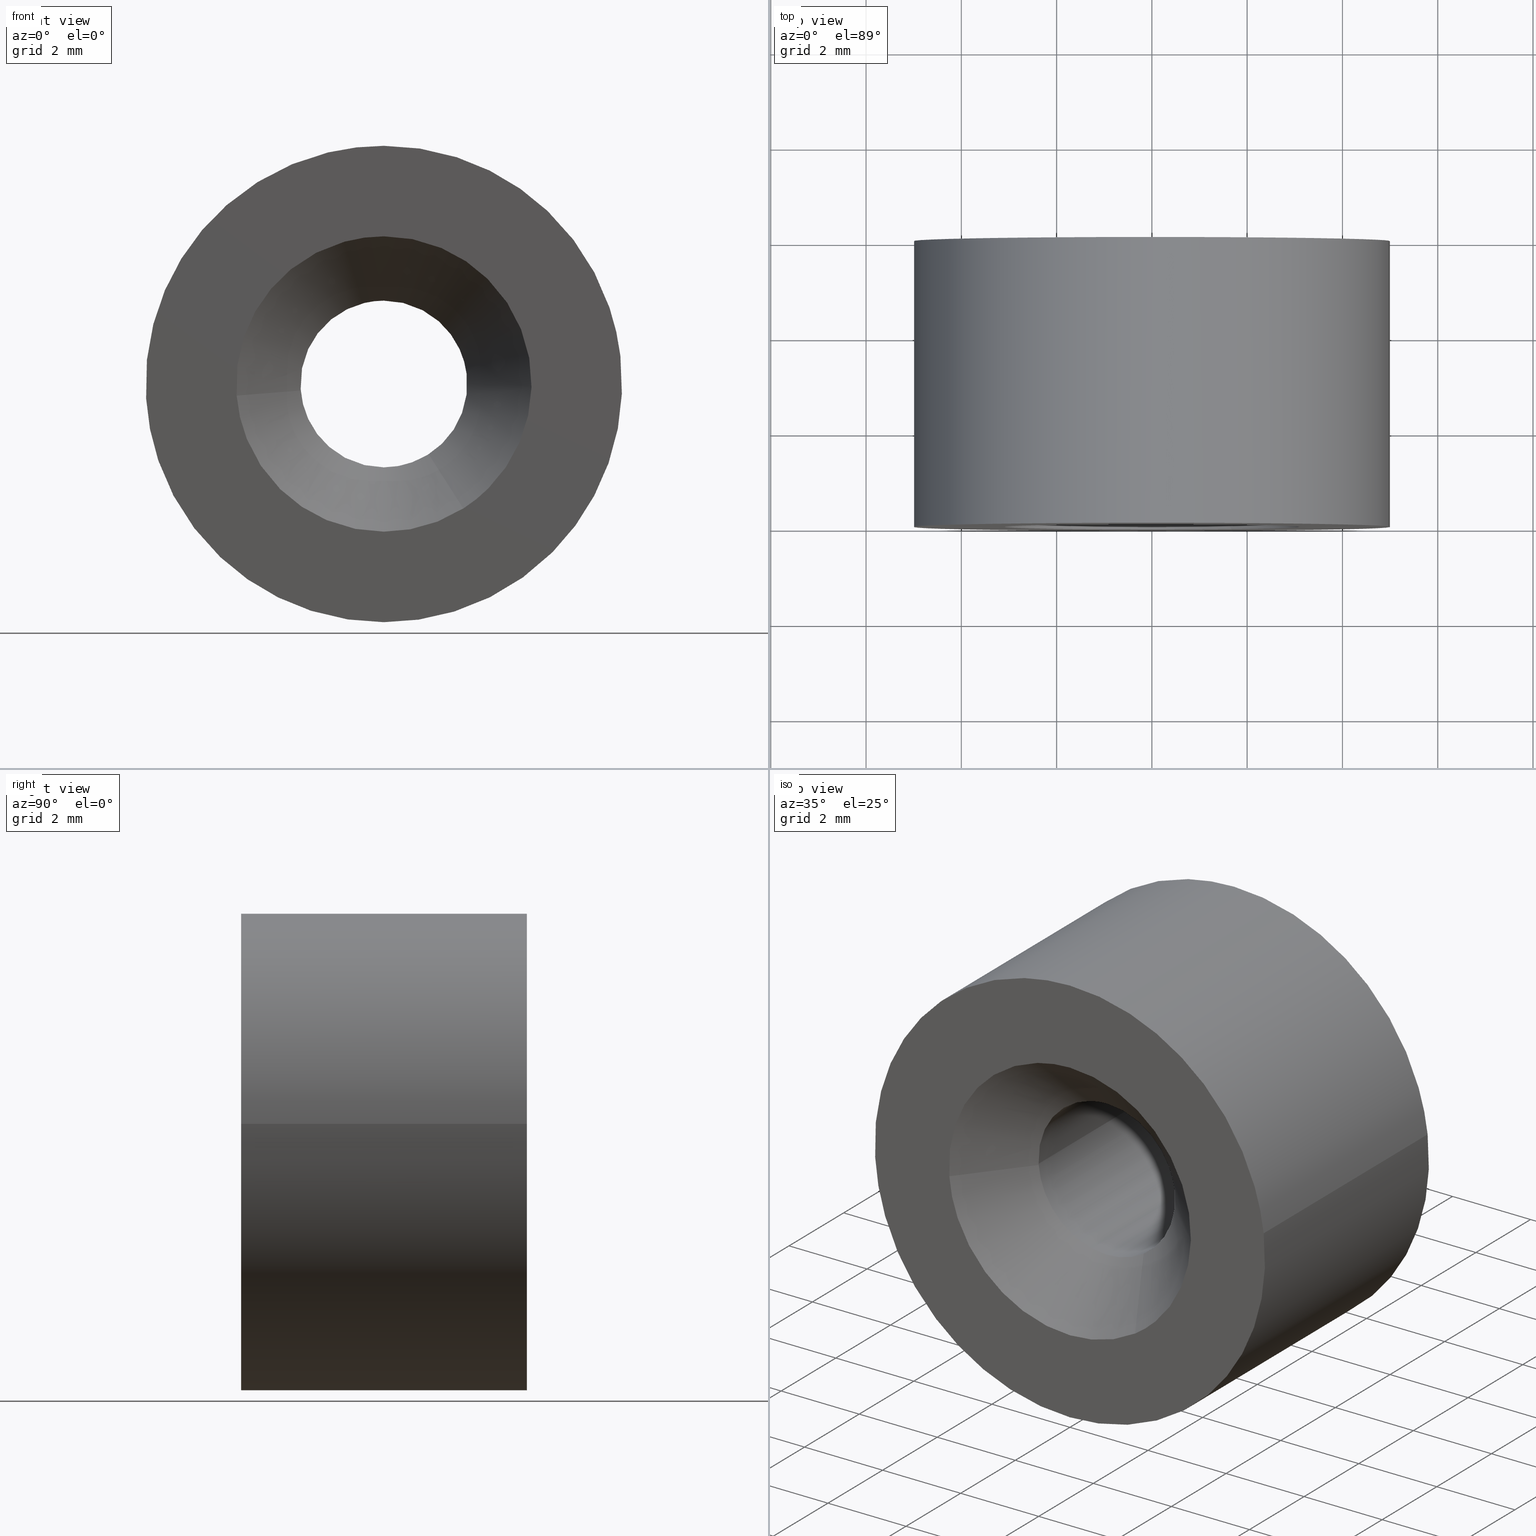
[diagram: canonical four-view strip — front | top / right | iso, engineering-drawing reading convention]
A machine part, canonical four-view strip (front | top / right | iso — engineering-drawing reading convention). The complete STEP part file that produces these views, byte-faithful:
ISO-10303-21;
HEADER;
/****************************************************************
 * Generated by software with PDE/Lib inside                    *
 * PDElib Version 4.4.1-0003, patched  Thursday August 19 11:58 *
 * International Technegroup Inc. (www.iti-oh.com)              *
 ****************************************************************/
FILE_DESCRIPTION((''),'2;1');
FILE_NAME('','2005-07-15T16:13:46',(''),(''),'','CADfix','');
FILE_SCHEMA(('AUTOMOTIVE_DESIGN'));
ENDSEC;
DATA;
#5=APPLICATION_CONTEXT('automotive design');
#6=APPLICATION_PROTOCOL_DEFINITION('Draft International Standard','automotive_design',1998,#5);
#7=PRODUCT_CONTEXT('None',#5,'mechanical');
#8=PRODUCT('stopper','','None',(#7));
#9=PRODUCT_RELATED_PRODUCT_CATEGORY('part','description',(#8));
#10=PRODUCT_DEFINITION_FORMATION('None','None',#8);
#11=PRODUCT_DEFINITION_CONTEXT('part definition',#5,'design');
#12=PRODUCT_DEFINITION('None','None',#10,#11);
#18=(NAMED_UNIT(*)PLANE_ANGLE_UNIT()SI_UNIT($,.RADIAN.));
#19=DIMENSIONAL_EXPONENTS(0.0,0.0,0.0,0.0,0.0,0.0,0.0);
#20=PLANE_ANGLE_MEASURE_WITH_UNIT(PLANE_ANGLE_MEASURE(0.017453292500000),#18);
#24=(CONVERSION_BASED_UNIT('DEGREE',#20)NAMED_UNIT(#19)PLANE_ANGLE_UNIT());
#28=(NAMED_UNIT(*)SI_UNIT($,.STERADIAN.)SOLID_ANGLE_UNIT());
#32=(LENGTH_UNIT()NAMED_UNIT(*)SI_UNIT(.MILLI.,.METRE.));
#34=UNCERTAINTY_MEASURE_WITH_UNIT(LENGTH_MEASURE(0.001000000000000),#32,'DISTANCE_ACCURACY_VALUE','');
#36=(GEOMETRIC_REPRESENTATION_CONTEXT(3)GLOBAL_UNCERTAINTY_ASSIGNED_CONTEXT((#34))GLOBAL_UNIT_ASSIGNED_CONTEXT((#24,#28,#32))REPRESENTATION_CONTEXT('None','None'));
#37=AXIS2_PLACEMENT_3D('',#38,#39,#40);
#38=CARTESIAN_POINT('',(0.0,0.0,0.0));
#39=DIRECTION('',(0.0,0.0,1.0));
#40=DIRECTION('',(1.0,0.0,0.0));
#41=ADVANCED_BREP_SHAPE_REPRESENTATION('',(#37,#615),#36);
#42=PRODUCT_DEFINITION_SHAPE('','',#12);
#43=SHAPE_DEFINITION_REPRESENTATION(#42,#41);
#44=CARTESIAN_POINT('',(0.923086424252046,-4.616249999999998,-1.446867483863524));
#45=CARTESIAN_POINT('',(1.791808627370082,-4.616249999999998,-0.892631742796702));
#46=CARTESIAN_POINT('',(1.710959374019479,-4.616249999999998,0.134655423042915));
#47=CARTESIAN_POINT('',(1.576303950976564,-4.616249999999998,1.845614797062394));
#48=CARTESIAN_POINT('',(-0.134655423042915,-4.616249999999998,1.710959374019479));
#49=CARTESIAN_POINT('',(-1.845614797062394,-4.616249999999998,1.576303950976564));
#50=CARTESIAN_POINT('',(-1.710959374019479,-4.616249999999998,-0.134655423042915));
#51=CARTESIAN_POINT('',(1.685943735569011,-6.034593750000000,-2.642588068170039));
#52=CARTESIAN_POINT('',(3.272595556912071,-6.034593750000000,-1.630320688723759));
#53=CARTESIAN_POINT('',(3.124930843586526,-6.034593750000001,0.245937391099156));
#54=CARTESIAN_POINT('',(2.878993452487368,-6.034593750000001,3.370868234685682));
#55=CARTESIAN_POINT('',(-0.245937391099156,-6.034593750000001,3.124930843586526));
#56=CARTESIAN_POINT('',(-3.370868234685682,-6.034593750000001,2.878993452487368));
#57=CARTESIAN_POINT('',(-3.124930843586526,-6.034593750000001,-0.245937391099156));
#65=(BOUNDED_SURFACE()B_SPLINE_SURFACE(2,1,((#44,#51),(#45,#52),(#46,#53),(#47,#54),(#48,#55),(#49,#56),(#50,#57)),.UNSPECIFIED.,.F.,.F.,.U.)B_SPLINE_SURFACE_WITH_KNOTS((3,2,2,3),(2,2),(0.0,3.531624183081431,8.725189158201184,13.918754133320940),(0.0,2.005840967357117),.UNSPECIFIED.)GEOMETRIC_REPRESENTATION_ITEM()RATIONAL_B_SPLINE_SURFACE(((0.872532871172386,0.872532871172386),(0.800832611206852,0.800832611206852),(1.0,1.0),(0.707106781186548,0.707106781186548),(1.0,1.0),(0.707106781186548,0.707106781186548),(1.0,1.0)))REPRESENTATION_ITEM('')SURFACE());
#66=CARTESIAN_POINT('',(1.737767022411301,-4.650000000000009,0.206556955368015));
#67=VERTEX_POINT('',#66);
#68=CARTESIAN_POINT('',(0.941238888533195,-4.650000000000139,-1.475320085511372));
#69=VERTEX_POINT('',#68);
#70=CARTESIAN_POINT('',(1.737767022411301,-4.650000000000008,0.206556955368015));
#71=CARTESIAN_POINT('',(1.750000000000000,-4.650000000000000,0.103640716129135));
#72=CARTESIAN_POINT('',(1.750000000000000,-4.650000000000000,0.0));
#73=CARTESIAN_POINT('',(1.750000000000001,-4.650000000000000,-0.959338898022254));
#74=CARTESIAN_POINT('',(0.941238888533195,-4.650000000000139,-1.475320085511373));
#82=(BOUNDED_CURVE()B_SPLINE_CURVE(2,(#70,#71,#72,#73,#74),.UNSPECIFIED.,.F.,.U.)B_SPLINE_CURVE_WITH_KNOTS((3,2,3),(0.229562760926032,0.250000000000000,0.407950112627101),.UNSPECIFIED.)CURVE()GEOMETRIC_REPRESENTATION_ITEM()RATIONAL_B_SPLINE_CURVE((0.956027317524783,0.976056285055862,1.0,0.814949932402804,0.863729296954646))REPRESENTATION_ITEM(''));
#83=EDGE_CURVE('',#67,#69,#82,.T.);
#84=ORIENTED_EDGE('',*,*,#83,.T.);
#85=CARTESIAN_POINT('',(1.667337459685583,-6.000000000000142,-2.613424151478305));
#86=VERTEX_POINT('',#85);
#87=CARTESIAN_POINT('',(0.941238888533195,-4.650000000000139,-1.475320085511372));
#88=CARTESIAN_POINT('',(1.667337459685583,-6.000000000000142,-2.613424151478305));
#89=QUASI_UNIFORM_CURVE('',1,(#87,#88),.UNSPECIFIED.,.F.,.U.);
#90=EDGE_CURVE('',#69,#86,#89,.T.);
#91=ORIENTED_EDGE('',*,*,#90,.T.);
#92=CARTESIAN_POINT('',(0.0,-6.0,3.100000000000000));
#93=VERTEX_POINT('',#92);
#94=CARTESIAN_POINT('',(0.0,-6.0,3.100000000000000));
#95=CARTESIAN_POINT('',(3.100000000000000,-6.0,3.100000000000000));
#96=CARTESIAN_POINT('',(3.100000000000000,-6.0,0.0));
#97=CARTESIAN_POINT('',(3.100000000000000,-6.0,-1.699400333642098));
#98=CARTESIAN_POINT('',(1.667337459685584,-6.000000000000142,-2.613424151478305));
#106=(BOUNDED_CURVE()B_SPLINE_CURVE(2,(#94,#95,#96,#97,#98),.UNSPECIFIED.,.F.,.U.)B_SPLINE_CURVE_WITH_KNOTS((3,2,3),(0.0,0.250000000000000,0.407950112627304),.UNSPECIFIED.)CURVE()GEOMETRIC_REPRESENTATION_ITEM()RATIONAL_B_SPLINE_CURVE((1.0,0.707106781186547,1.0,0.814949932402566,0.863729296954772))REPRESENTATION_ITEM(''));
#107=EDGE_CURVE('',#93,#86,#106,.T.);
#108=ORIENTED_EDGE('',*,*,#107,.F.);
#109=CARTESIAN_POINT('',(-3.090443734573221,-6.000000000001325,-0.243223196766532));
#110=VERTEX_POINT('',#109);
#111=CARTESIAN_POINT('',(-3.090443734573222,-6.000000000001325,-0.243223196766532));
#112=CARTESIAN_POINT('',(-3.100000000000000,-6.0,-0.121799331733931));
#113=CARTESIAN_POINT('',(-3.100000000000000,-6.0,0.0));
#114=CARTESIAN_POINT('',(-3.100000000000000,-6.0,3.100000000000000));
#115=CARTESIAN_POINT('',(0.0,-6.0,3.100000000000000));
#123=(BOUNDED_CURVE()B_SPLINE_CURVE(2,(#111,#112,#113,#114,#115),.UNSPECIFIED.,.F.,.U.)B_SPLINE_CURVE_WITH_KNOTS((3,2,3),(0.736331300631646,0.750000000000000,1.0),.UNSPECIFIED.)CURVE()GEOMETRIC_REPRESENTATION_ITEM()RATIONAL_B_SPLINE_CURVE((0.969723356169475,0.983986122580037,1.0,0.707106781186547,1.0))REPRESENTATION_ITEM(''));
#124=EDGE_CURVE('',#110,#93,#123,.T.);
#125=ORIENTED_EDGE('',*,*,#124,.F.);
#126=CARTESIAN_POINT('',(-1.744605334033341,-4.650000000000918,-0.137303417530764));
#127=VERTEX_POINT('',#126);
#128=CARTESIAN_POINT('',(-1.744605334033341,-4.650000000000918,-0.137303417530764));
#129=CARTESIAN_POINT('',(-3.090443734573221,-6.000000000001325,-0.243223196766532));
#130=QUASI_UNIFORM_CURVE('',1,(#128,#129),.UNSPECIFIED.,.F.,.U.);
#131=EDGE_CURVE('',#127,#110,#130,.T.);
#132=ORIENTED_EDGE('',*,*,#131,.F.);
#133=CARTESIAN_POINT('',(-1.746735897237812,-4.650000000000000,-0.106834944193444));
#134=VERTEX_POINT('',#133);
#135=CARTESIAN_POINT('',(-1.744605334033341,-4.650000000000918,-0.137303417530764));
#136=CARTESIAN_POINT('',(-1.745803562803911,-4.650000000000000,-0.122078477440978));
#137=CARTESIAN_POINT('',(-1.746735897237812,-4.650000000000000,-0.106834944193444));
#145=(BOUNDED_CURVE()B_SPLINE_CURVE(2,(#135,#136,#137),.UNSPECIFIED.,.F.,.U.)B_SPLINE_CURVE_WITH_KNOTS((3,3),(0.736331300631399,0.739332962240497),.UNSPECIFIED.)CURVE()GEOMETRIC_REPRESENTATION_ITEM()RATIONAL_B_SPLINE_CURVE((0.969723356168960,0.972855475562349,0.976072041670049))REPRESENTATION_ITEM(''));
#146=EDGE_CURVE('',#127,#134,#145,.T.);
#147=ORIENTED_EDGE('',*,*,#146,.T.);
#148=CARTESIAN_POINT('',(0.0,-4.650000000000000,1.750000000000000));
#149=VERTEX_POINT('',#148);
#150=CARTESIAN_POINT('',(-1.746735897237812,-4.650000000000000,-0.106834944193444));
#151=CARTESIAN_POINT('',(-1.750000000000000,-4.650000000000000,-0.053467335779996));
#152=CARTESIAN_POINT('',(-1.750000000000000,-4.650000000000000,0.0));
#153=CARTESIAN_POINT('',(-1.750000000000000,-4.649999999999999,1.750000000000000));
#154=CARTESIAN_POINT('',(0.0,-4.650000000000000,1.750000000000000));
#162=(BOUNDED_CURVE()B_SPLINE_CURVE(2,(#150,#151,#152,#153,#154),.UNSPECIFIED.,.F.,.U.)B_SPLINE_CURVE_WITH_KNOTS((3,2,3),(0.739332962240498,0.750000000000000,1.0),.UNSPECIFIED.)CURVE()GEOMETRIC_REPRESENTATION_ITEM()RATIONAL_B_SPLINE_CURVE((0.976072041670050,0.987502787901659,1.0,0.707106781186547,1.0))REPRESENTATION_ITEM(''));
#163=EDGE_CURVE('',#134,#149,#162,.T.);
#164=ORIENTED_EDGE('',*,*,#163,.T.);
#165=CARTESIAN_POINT('',(0.0,-4.650000000000000,1.750000000000000));
#166=CARTESIAN_POINT('',(1.554308082307627,-4.650000000000000,1.750000000000000));
#167=CARTESIAN_POINT('',(1.737767022411301,-4.650000000000008,0.206556955368015));
#175=(BOUNDED_CURVE()B_SPLINE_CURVE(2,(#165,#166,#167),.UNSPECIFIED.,.F.,.U.)B_SPLINE_CURVE_WITH_KNOTS((3,3),(0.0,0.229562760926032),.UNSPECIFIED.)CURVE()GEOMETRIC_REPRESENTATION_ITEM()RATIONAL_B_SPLINE_CURVE((1.0,0.731050496130685,0.956027317524783))REPRESENTATION_ITEM(''));
#176=EDGE_CURVE('',#149,#67,#175,.T.);
#177=ORIENTED_EDGE('',*,*,#176,.T.);
#178=EDGE_LOOP('',(#84,#91,#108,#125,#132,#147,#164,#177));
#179=FACE_OUTER_BOUND('',#178,.T.);
#180=ADVANCED_FACE('',(#179),#65,.F.);
#181=CARTESIAN_POINT('',(-1.710959374019479,-4.616249999999998,-0.134655423042915));
#182=CARTESIAN_POINT('',(-1.576303950976564,-4.616249999999998,-1.845614797062394));
#183=CARTESIAN_POINT('',(0.134655423042915,-4.616249999999998,-1.710959374019479));
#184=CARTESIAN_POINT('',(0.561839519257320,-4.616249999999998,-1.677339256519073));
#185=CARTESIAN_POINT('',(0.923086424252046,-4.616249999999998,-1.446867483863524));
#186=CARTESIAN_POINT('',(-3.124930843586526,-6.034593750000001,-0.245937391099156));
#187=CARTESIAN_POINT('',(-2.878993452487368,-6.034593750000001,-3.370868234685682));
#188=CARTESIAN_POINT('',(0.245937391099156,-6.034593750000001,-3.124930843586526));
#189=CARTESIAN_POINT('',(1.026155073891917,-6.034593750000001,-3.063526380255986));
#190=CARTESIAN_POINT('',(1.685943735569011,-6.034593750000000,-2.642588068170039));
#198=(BOUNDED_SURFACE()B_SPLINE_SURFACE(2,1,((#181,#186),(#182,#187),(#183,#188),(#184,#189),(#185,#190)),.UNSPECIFIED.,.F.,.F.,.U.)B_SPLINE_SURFACE_WITH_KNOTS((3,2,3),(2,2),(0.0,5.193564975119752,6.855505767158074),(0.0,2.005840967357117),.UNSPECIFIED.)GEOMETRIC_REPRESENTATION_ITEM()RATIONAL_B_SPLINE_SURFACE(((1.0,1.0),(0.707106781186548,0.707106781186548),(1.0,1.0),(0.906274169979695,0.906274169979695),(0.872532871172386,0.872532871172386)))REPRESENTATION_ITEM('')SURFACE());
#199=CARTESIAN_POINT('',(0.0,-4.650000000000000,-1.750000000000000));
#200=VERTEX_POINT('',#199);
#201=CARTESIAN_POINT('',(0.941238888533195,-4.650000000000139,-1.475320085511373));
#202=CARTESIAN_POINT('',(0.510699096916628,-4.650000000000000,-1.750000000000000));
#203=CARTESIAN_POINT('',(0.0,-4.650000000000000,-1.750000000000000));
#211=(BOUNDED_CURVE()B_SPLINE_CURVE(2,(#201,#202,#203),.UNSPECIFIED.,.F.,.U.)B_SPLINE_CURVE_WITH_KNOTS((3,3),(0.407950112627101,0.500000000000000),.UNSPECIFIED.)CURVE()GEOMETRIC_REPRESENTATION_ITEM()RATIONAL_B_SPLINE_CURVE((0.863729296954646,0.892156848783744,1.0))REPRESENTATION_ITEM(''));
#212=EDGE_CURVE('',#69,#200,#211,.T.);
#213=ORIENTED_EDGE('',*,*,#212,.T.);
#214=CARTESIAN_POINT('',(0.0,-4.650000000000000,-1.750000000000000));
#215=CARTESIAN_POINT('',(-1.617683360388907,-4.650000000000000,-1.750000000000000));
#216=CARTESIAN_POINT('',(-1.744605334033341,-4.650000000000918,-0.137303417530764));
#224=(BOUNDED_CURVE()B_SPLINE_CURVE(2,(#214,#215,#216),.UNSPECIFIED.,.F.,.U.)B_SPLINE_CURVE_WITH_KNOTS((3,3),(0.500000000000000,0.736331300631398),.UNSPECIFIED.)CURVE()GEOMETRIC_REPRESENTATION_ITEM()RATIONAL_B_SPLINE_CURVE((1.0,0.723120658606800,0.969723356168959))REPRESENTATION_ITEM(''));
#225=EDGE_CURVE('',#200,#127,#224,.T.);
#226=ORIENTED_EDGE('',*,*,#225,.T.);
#227=ORIENTED_EDGE('',*,*,#131,.T.);
#228=CARTESIAN_POINT('',(0.0,-6.0,-3.100000000000000));
#229=VERTEX_POINT('',#228);
#230=CARTESIAN_POINT('',(0.0,-6.0,-3.100000000000000));
#231=CARTESIAN_POINT('',(-2.865610524121626,-6.0,-3.100000000000000));
#232=CARTESIAN_POINT('',(-3.090443734573221,-6.000000000001325,-0.243223196766532));
#240=(BOUNDED_CURVE()B_SPLINE_CURVE(2,(#230,#231,#232),.UNSPECIFIED.,.F.,.U.)B_SPLINE_CURVE_WITH_KNOTS((3,3),(0.500000000000000,0.736331300631645),.UNSPECIFIED.)CURVE()GEOMETRIC_REPRESENTATION_ITEM()RATIONAL_B_SPLINE_CURVE((1.0,0.723120658606511,0.969723356169474))REPRESENTATION_ITEM(''));
#241=EDGE_CURVE('',#229,#110,#240,.T.);
#242=ORIENTED_EDGE('',*,*,#241,.F.);
#243=CARTESIAN_POINT('',(1.667337459685584,-6.000000000000142,-2.613424151478305));
#244=CARTESIAN_POINT('',(0.904666971678652,-6.000000000000001,-3.100000000000000));
#245=CARTESIAN_POINT('',(0.0,-6.0,-3.100000000000000));
#253=(BOUNDED_CURVE()B_SPLINE_CURVE(2,(#243,#244,#245),.UNSPECIFIED.,.F.,.U.)B_SPLINE_CURVE_WITH_KNOTS((3,3),(0.407950112627304,0.500000000000000),.UNSPECIFIED.)CURVE()GEOMETRIC_REPRESENTATION_ITEM()RATIONAL_B_SPLINE_CURVE((0.863729296954772,0.892156848783981,1.0))REPRESENTATION_ITEM(''));
#254=EDGE_CURVE('',#86,#229,#253,.T.);
#255=ORIENTED_EDGE('',*,*,#254,.F.);
#256=ORIENTED_EDGE('',*,*,#90,.F.);
#257=EDGE_LOOP('',(#213,#226,#227,#242,#255,#256));
#258=FACE_OUTER_BOUND('',#257,.T.);
#259=ADVANCED_FACE('',(#258),#198,.F.);
#260=CARTESIAN_POINT('',(1.737766671136416,-4.766250000000001,0.206559910649327));
#261=CARTESIAN_POINT('',(1.743678327035060,-4.766250000000001,0.156825775116461));
#262=CARTESIAN_POINT('',(1.746735897238267,-4.766250000000000,0.106834944186000));
#263=CARTESIAN_POINT('',(1.853570841424267,-4.766250000000001,-1.639900953052267));
#264=CARTESIAN_POINT('',(0.106834944186000,-4.766250000000000,-1.746735897238267));
#265=CARTESIAN_POINT('',(-1.639900953052267,-4.766250000000001,-1.853570841424267));
#266=CARTESIAN_POINT('',(-1.746735897238267,-4.766250000000000,-0.106834944186000));
#267=CARTESIAN_POINT('',(1.737766671136416,0.119156250000000,0.206559910649327));
#268=CARTESIAN_POINT('',(1.743678327035060,0.119156250000000,0.156825775116461));
#269=CARTESIAN_POINT('',(1.746735897238267,0.119156250000000,0.106834944186000));
#270=CARTESIAN_POINT('',(1.853570841424267,0.119156250000000,-1.639900953052267));
#271=CARTESIAN_POINT('',(0.106834944186000,0.119156250000000,-1.746735897238267));
#272=CARTESIAN_POINT('',(-1.639900953052267,0.119156250000000,-1.853570841424267));
#273=CARTESIAN_POINT('',(-1.746735897238267,0.119156250000000,-0.106834944186000));
#281=(BOUNDED_SURFACE()B_SPLINE_SURFACE(2,1,((#260,#267),(#261,#268),(#262,#269),(#263,#270),(#264,#271),(#265,#272),(#266,#273)),.UNSPECIFIED.,.F.,.F.,.U.)B_SPLINE_SURFACE_WITH_KNOTS((3,2,2,3),(2,2),(3.078760800517997,3.141592653589793,4.712388980384690,6.283185307179586),(0.0,4.885406250000001),.UNSPECIFIED.)GEOMETRIC_REPRESENTATION_ITEM()RATIONAL_B_SPLINE_SURFACE(((0.977505800795127,0.977505800795127),(0.988284271247462,0.988284271247462),(1.0,1.0),(0.707106781186548,0.707106781186548),(1.0,1.0),(0.707106781186548,0.707106781186548),(1.0,1.0)))REPRESENTATION_ITEM('')SURFACE());
#282=ORIENTED_EDGE('',*,*,#83,.F.);
#283=CARTESIAN_POINT('',(1.737767018176487,3.123371E-016,0.206556990996085));
#284=VERTEX_POINT('',#283);
#285=CARTESIAN_POINT('',(1.737767022411301,-4.650000000000009,0.206556955368015));
#286=CARTESIAN_POINT('',(1.737767018176487,3.123371E-016,0.206556990996085));
#287=QUASI_UNIFORM_CURVE('',1,(#285,#286),.UNSPECIFIED.,.F.,.U.);
#288=EDGE_CURVE('',#67,#284,#287,.T.);
#289=ORIENTED_EDGE('',*,*,#288,.T.);
#290=CARTESIAN_POINT('',(0.0,0.0,-1.750000000000000));
#291=VERTEX_POINT('',#290);
#292=CARTESIAN_POINT('',(1.737767018176487,3.123371E-016,0.206556990996086));
#293=CARTESIAN_POINT('',(1.750000000000001,0.0,0.103640734131489));
#294=CARTESIAN_POINT('',(1.750000000000000,0.0,0.0));
#295=CARTESIAN_POINT('',(1.750000000000000,0.0,-1.750000000000000));
#296=CARTESIAN_POINT('',(0.0,0.0,-1.750000000000000));
#304=(BOUNDED_CURVE()B_SPLINE_CURVE(2,(#292,#293,#294,#295,#296),.UNSPECIFIED.,.F.,.U.)B_SPLINE_CURVE_WITH_KNOTS((3,2,3),(0.229562757461090,0.250000000000000,0.500000000000000),.UNSPECIFIED.)CURVE()GEOMETRIC_REPRESENTATION_ITEM()RATIONAL_B_SPLINE_CURVE((0.956027310733336,0.976056280996430,1.0,0.707106781186547,1.0))REPRESENTATION_ITEM(''));
#305=EDGE_CURVE('',#284,#291,#304,.T.);
#306=ORIENTED_EDGE('',*,*,#305,.T.);
#307=CARTESIAN_POINT('',(-1.746735897237812,3.469447E-017,-0.106834944193444));
#308=VERTEX_POINT('',#307);
#309=CARTESIAN_POINT('',(0.0,0.0,-1.750000000000000));
#310=CARTESIAN_POINT('',(-1.646235617070904,0.0,-1.750000000000000));
#311=CARTESIAN_POINT('',(-1.746735897237812,3.469447E-017,-0.106834944193444));
#319=(BOUNDED_CURVE()B_SPLINE_CURVE(2,(#309,#310,#311),.UNSPECIFIED.,.F.,.U.)B_SPLINE_CURVE_WITH_KNOTS((3,3),(0.500000000000000,0.739332962240497),.UNSPECIFIED.)CURVE()GEOMETRIC_REPRESENTATION_ITEM()RATIONAL_B_SPLINE_CURVE((1.0,0.719603993284889,0.976072041670049))REPRESENTATION_ITEM(''));
#320=EDGE_CURVE('',#291,#308,#319,.T.);
#321=ORIENTED_EDGE('',*,*,#320,.T.);
#322=CARTESIAN_POINT('',(-1.746735897237812,-4.650000000000000,-0.106834944193444));
#323=CARTESIAN_POINT('',(-1.746735897237812,3.469447E-017,-0.106834944193444));
#324=QUASI_UNIFORM_CURVE('',1,(#322,#323),.UNSPECIFIED.,.F.,.U.);
#325=EDGE_CURVE('',#134,#308,#324,.T.);
#326=ORIENTED_EDGE('',*,*,#325,.F.);
#327=ORIENTED_EDGE('',*,*,#146,.F.);
#328=ORIENTED_EDGE('',*,*,#225,.F.);
#329=ORIENTED_EDGE('',*,*,#212,.F.);
#330=EDGE_LOOP('',(#282,#289,#306,#321,#326,#327,#328,#329));
#331=FACE_OUTER_BOUND('',#330,.T.);
#332=ADVANCED_FACE('',(#331),#281,.F.);
#333=CARTESIAN_POINT('',(-1.745263691107333,-4.766249999999998,-0.130905301657788));
#334=CARTESIAN_POINT('',(-1.745997687342886,-4.766249999999999,-0.118904569286490));
#335=CARTESIAN_POINT('',(-1.853570841424267,-4.766250000000001,1.639900953052267));
#336=CARTESIAN_POINT('',(-0.106834944186000,-4.766250000000000,1.746735897238267));
#337=CARTESIAN_POINT('',(1.542701108969127,-4.766249999999999,1.847625844281923));
#338=CARTESIAN_POINT('',(1.739227227456653,-4.766250000000001,0.194272404876085));
#339=CARTESIAN_POINT('',(1.740679933877908,-4.766250000000002,0.182050939472328));
#340=CARTESIAN_POINT('',(-1.745263691107333,0.119156250000000,-0.130905301657788));
#341=CARTESIAN_POINT('',(-1.745997687342886,0.119156250000000,-0.118904569286490));
#342=CARTESIAN_POINT('',(-1.853570841424267,0.119156250000000,1.639900953052267));
#343=CARTESIAN_POINT('',(-0.106834944186000,0.119156250000000,1.746735897238267));
#344=CARTESIAN_POINT('',(1.542701108969127,0.119156250000000,1.847625844281923));
#345=CARTESIAN_POINT('',(1.739227227456653,0.119156250000000,0.194272404876085));
#346=CARTESIAN_POINT('',(1.740679933877908,0.119156250000000,0.182050939472328));
#354=(BOUNDED_SURFACE()B_SPLINE_SURFACE(2,1,((#333,#340),(#334,#341),(#335,#342),(#336,#343),(#337,#344),(#338,#345),(#339,#346)),.UNSPECIFIED.,.F.,.F.,.U.)B_SPLINE_SURFACE_WITH_KNOTS((3,1,2,1,3),(2,2),(0.0,0.028415066793799,2.927910003405464,5.711425142552661,5.739843617607674),(0.0,4.885406250000001),.UNSPECIFIED.)GEOMETRIC_REPRESENTATION_ITEM()RATIONAL_B_SPLINE_SURFACE(((1.005740710405076,1.005740710405076),(1.002870355202538,1.002870355202538),(0.707106781186548,0.707106781186548),(1.0,1.0),(0.718822509939086,0.718822509939086),(0.980146844324925,0.980146844324925),(0.982787887854724,0.982787887854724)))REPRESENTATION_ITEM('')SURFACE());
#355=ORIENTED_EDGE('',*,*,#176,.F.);
#356=ORIENTED_EDGE('',*,*,#163,.F.);
#357=ORIENTED_EDGE('',*,*,#325,.T.);
#358=CARTESIAN_POINT('',(0.0,0.0,1.750000000000000));
#359=VERTEX_POINT('',#358);
#360=CARTESIAN_POINT('',(-1.746735897237812,3.469447E-017,-0.106834944193444));
#361=CARTESIAN_POINT('',(-1.750000000000000,0.0,-0.053467335779996));
#362=CARTESIAN_POINT('',(-1.750000000000000,0.0,0.0));
#363=CARTESIAN_POINT('',(-1.750000000000000,0.0,1.750000000000000));
#364=CARTESIAN_POINT('',(0.0,0.0,1.750000000000000));
#372=(BOUNDED_CURVE()B_SPLINE_CURVE(2,(#360,#361,#362,#363,#364),.UNSPECIFIED.,.F.,.U.)B_SPLINE_CURVE_WITH_KNOTS((3,2,3),(0.739332962240498,0.750000000000000,1.0),.UNSPECIFIED.)CURVE()GEOMETRIC_REPRESENTATION_ITEM()RATIONAL_B_SPLINE_CURVE((0.976072041670050,0.987502787901659,1.0,0.707106781186547,1.0))REPRESENTATION_ITEM(''));
#373=EDGE_CURVE('',#308,#359,#372,.T.);
#374=ORIENTED_EDGE('',*,*,#373,.T.);
#375=CARTESIAN_POINT('',(0.0,0.0,1.750000000000000));
#376=CARTESIAN_POINT('',(1.554308050216553,0.0,1.749999999999999));
#377=CARTESIAN_POINT('',(1.737767018176487,3.123371E-016,0.206556990996086));
#385=(BOUNDED_CURVE()B_SPLINE_CURVE(2,(#375,#376,#377),.UNSPECIFIED.,.F.,.U.)B_SPLINE_CURVE_WITH_KNOTS((3,3),(0.0,0.229562757461090),.UNSPECIFIED.)CURVE()GEOMETRIC_REPRESENTATION_ITEM()RATIONAL_B_SPLINE_CURVE((1.0,0.731050500190118,0.956027310733336))REPRESENTATION_ITEM(''));
#386=EDGE_CURVE('',#359,#284,#385,.T.);
#387=ORIENTED_EDGE('',*,*,#386,.T.);
#388=ORIENTED_EDGE('',*,*,#288,.F.);
#389=EDGE_LOOP('',(#355,#356,#357,#374,#387,#388));
#390=FACE_OUTER_BOUND('',#389,.T.);
#391=ADVANCED_FACE('',(#390),#354,.F.);
#392=CARTESIAN_POINT('',(4.965047631818332,-6.150000000000001,0.590171173283792));
#393=CARTESIAN_POINT('',(4.981938077243028,-6.150000000000001,0.448073643189888));
#394=CARTESIAN_POINT('',(4.990673992109334,-6.150000000000001,0.305242697674285));
#395=CARTESIAN_POINT('',(5.295916689783620,-6.150000000000002,-4.685431294435048));
#396=CARTESIAN_POINT('',(0.305242697674285,-6.150000000000001,-4.990673992109334));
#397=CARTESIAN_POINT('',(-4.685431294435048,-6.150000000000002,-5.295916689783620));
#398=CARTESIAN_POINT('',(-4.990673992109334,-6.150000000000001,-0.305242697674285));
#399=CARTESIAN_POINT('',(4.965047631818332,0.153750000000000,0.590171173283792));
#400=CARTESIAN_POINT('',(4.981938077243028,0.153750000000001,0.448073643189888));
#401=CARTESIAN_POINT('',(4.990673992109334,0.153750000000001,0.305242697674285));
#402=CARTESIAN_POINT('',(5.295916689783620,0.153750000000000,-4.685431294435048));
#403=CARTESIAN_POINT('',(0.305242697674285,0.153750000000001,-4.990673992109334));
#404=CARTESIAN_POINT('',(-4.685431294435048,0.153750000000000,-5.295916689783620));
#405=CARTESIAN_POINT('',(-4.990673992109334,0.153750000000001,-0.305242697674285));
#413=(BOUNDED_SURFACE()B_SPLINE_SURFACE(2,1,((#392,#399),(#393,#400),(#394,#401),(#395,#402),(#396,#403),(#397,#404),(#398,#405)),.UNSPECIFIED.,.F.,.F.,.U.)B_SPLINE_SURFACE_WITH_KNOTS((3,2,2,3),(2,2),(0.0,0.331370849898476,8.615642097360375,16.899913344822270),(0.0,6.303750000000003),.UNSPECIFIED.)GEOMETRIC_REPRESENTATION_ITEM()RATIONAL_B_SPLINE_SURFACE(((0.977505800795127,0.977505800795127),(0.988284271247462,0.988284271247462),(1.0,1.0),(0.707106781186548,0.707106781186548),(1.0,1.0),(0.707106781186548,0.707106781186548),(1.0,1.0)))REPRESENTATION_ITEM('')SURFACE());
#414=CARTESIAN_POINT('',(4.965048007634929,-4.741845E-015,0.590168011561354));
#415=VERTEX_POINT('',#414);
#416=CARTESIAN_POINT('',(0.0,0.0,-5.0));
#417=VERTEX_POINT('',#416);
#418=CARTESIAN_POINT('',(4.965048007634929,-4.741845E-015,0.590168011561354));
#419=CARTESIAN_POINT('',(5.000000000000001,0.0,0.296119000685819));
#420=CARTESIAN_POINT('',(5.0,0.0,0.0));
#421=CARTESIAN_POINT('',(5.000000000000001,0.0,-5.000000000000001));
#422=CARTESIAN_POINT('',(0.0,0.0,-5.0));
#430=(BOUNDED_CURVE()B_SPLINE_CURVE(2,(#418,#419,#420,#421,#422),.UNSPECIFIED.,.F.,.U.)B_SPLINE_CURVE_WITH_KNOTS((3,2,3),(0.229562581136241,0.250000000000000,0.500000000000000),.UNSPECIFIED.)CURVE()GEOMETRIC_REPRESENTATION_ITEM()RATIONAL_B_SPLINE_CURVE((0.956026965128767,0.976056074419019,1.0,0.707106781186548,1.0))REPRESENTATION_ITEM(''));
#431=EDGE_CURVE('',#415,#417,#430,.T.);
#432=ORIENTED_EDGE('',*,*,#431,.F.);
#433=CARTESIAN_POINT('',(4.965048002999415,-6.0,0.590168050559857));
#434=VERTEX_POINT('',#433);
#435=CARTESIAN_POINT('',(4.965048002999415,-6.0,0.590168050559857));
#436=CARTESIAN_POINT('',(4.965048007634929,-4.741845E-015,0.590168011561354));
#437=QUASI_UNIFORM_CURVE('',1,(#435,#436),.UNSPECIFIED.,.F.,.U.);
#438=EDGE_CURVE('',#434,#415,#437,.T.);
#439=ORIENTED_EDGE('',*,*,#438,.F.);
#440=CARTESIAN_POINT('',(0.0,-6.0,-5.0));
#441=VERTEX_POINT('',#440);
#442=CARTESIAN_POINT('',(4.965048002999415,-6.000000000000001,0.590168050559857));
#443=CARTESIAN_POINT('',(5.0,-6.0,0.296119020391211));
#444=CARTESIAN_POINT('',(5.0,-6.0,0.0));
#445=CARTESIAN_POINT('',(5.000000000000001,-6.0,-5.000000000000001));
#446=CARTESIAN_POINT('',(0.0,-6.0,-5.0));
#454=(BOUNDED_CURVE()B_SPLINE_CURVE(2,(#442,#443,#444,#445,#446),.UNSPECIFIED.,.F.,.U.)B_SPLINE_CURVE_WITH_KNOTS((3,2,3),(0.229562579808786,0.250000000000000,0.500000000000000),.UNSPECIFIED.)CURVE()GEOMETRIC_REPRESENTATION_ITEM()RATIONAL_B_SPLINE_CURVE((0.956026962526900,0.976056072863809,1.0,0.707106781186548,1.0))REPRESENTATION_ITEM(''));
#455=EDGE_CURVE('',#434,#441,#454,.T.);
#456=ORIENTED_EDGE('',*,*,#455,.T.);
#457=CARTESIAN_POINT('',(-4.990674099992546,-6.0,-0.305240933789139));
#458=VERTEX_POINT('',#457);
#459=CARTESIAN_POINT('',(0.0,-6.0,-5.0));
#460=CARTESIAN_POINT('',(-4.703532000033385,-6.0,-5.000000000000001));
#461=CARTESIAN_POINT('',(-4.990674099992546,-6.0,-0.305240933789139));
#469=(BOUNDED_CURVE()B_SPLINE_CURVE(2,(#459,#460,#461),.UNSPECIFIED.,.F.,.U.)B_SPLINE_CURVE_WITH_KNOTS((3,3),(0.500000000000000,0.739333023226263),.UNSPECIFIED.)CURVE()GEOMETRIC_REPRESENTATION_ITEM()RATIONAL_B_SPLINE_CURVE((1.0,0.719603921835620,0.976072172374189))REPRESENTATION_ITEM(''));
#470=EDGE_CURVE('',#441,#458,#469,.T.);
#471=ORIENTED_EDGE('',*,*,#470,.T.);
#472=CARTESIAN_POINT('',(-4.990674101339240,-1.942890E-015,-0.305240911770624));
#473=VERTEX_POINT('',#472);
#474=CARTESIAN_POINT('',(-4.990674099992546,-6.0,-0.305240933789139));
#475=CARTESIAN_POINT('',(-4.990674101339240,-1.942890E-015,-0.305240911770624));
#476=QUASI_UNIFORM_CURVE('',1,(#474,#475),.UNSPECIFIED.,.F.,.U.);
#477=EDGE_CURVE('',#458,#473,#476,.T.);
#478=ORIENTED_EDGE('',*,*,#477,.T.);
#479=CARTESIAN_POINT('',(0.0,0.0,-5.0));
#480=CARTESIAN_POINT('',(-4.703532020823824,0.0,-4.999999999999999));
#481=CARTESIAN_POINT('',(-4.990674101339240,-1.942890E-015,-0.305240911770624));
#489=(BOUNDED_CURVE()B_SPLINE_CURVE(2,(#479,#480,#481),.UNSPECIFIED.,.F.,.U.)B_SPLINE_CURVE_WITH_KNOTS((3,3),(0.500000000000000,0.739333023987528),.UNSPECIFIED.)CURVE()GEOMETRIC_REPRESENTATION_ITEM()RATIONAL_B_SPLINE_CURVE((1.0,0.719603920943743,0.976072174005725))REPRESENTATION_ITEM(''));
#490=EDGE_CURVE('',#417,#473,#489,.T.);
#491=ORIENTED_EDGE('',*,*,#490,.F.);
#492=EDGE_LOOP('',(#432,#439,#456,#471,#478,#491));
#493=FACE_OUTER_BOUND('',#492,.T.);
#494=ADVANCED_FACE('',(#493),#413,.T.);
#495=CARTESIAN_POINT('',(-4.990673992109334,-6.150000000000001,-0.305242697674285));
#496=CARTESIAN_POINT('',(-5.295916689783620,-6.150000000000002,4.685431294435048));
#497=CARTESIAN_POINT('',(-0.305242697674285,-6.150000000000001,4.990673992109334));
#498=CARTESIAN_POINT('',(4.407717454197504,-6.150000000000001,5.278930983662638));
#499=CARTESIAN_POINT('',(4.965047631818332,-6.150000000000001,0.590171173283792));
#500=CARTESIAN_POINT('',(-4.990673992109334,0.153750000000001,-0.305242697674285));
#501=CARTESIAN_POINT('',(-5.295916689783620,0.153750000000000,4.685431294435048));
#502=CARTESIAN_POINT('',(-0.305242697674285,0.153750000000001,4.990673992109334));
#503=CARTESIAN_POINT('',(4.407717454197504,0.153750000000001,5.278930983662638));
#504=CARTESIAN_POINT('',(4.965047631818332,0.153750000000000,0.590171173283792));
#512=(BOUNDED_SURFACE()B_SPLINE_SURFACE(2,1,((#495,#500),(#496,#501),(#497,#502),(#498,#503),(#499,#504)),.UNSPECIFIED.,.F.,.F.,.U.)B_SPLINE_SURFACE_WITH_KNOTS((3,2,3),(2,2),(0.0,8.284271247461899,16.237171645025320),(0.0,6.303750000000004),.UNSPECIFIED.)GEOMETRIC_REPRESENTATION_ITEM()RATIONAL_B_SPLINE_SURFACE(((1.0,1.0),(0.707106781186548,0.707106781186548),(1.0,1.0),(0.718822509939086,0.718822509939086),(0.977505800795127,0.977505800795127)))REPRESENTATION_ITEM('')SURFACE());
#513=CARTESIAN_POINT('',(0.0,0.0,5.0));
#514=VERTEX_POINT('',#513);
#515=CARTESIAN_POINT('',(0.0,0.0,5.0));
#516=CARTESIAN_POINT('',(4.440875477595059,0.0,5.000000000000001));
#517=CARTESIAN_POINT('',(4.965048007634929,-4.741845E-015,0.590168011561354));
#525=(BOUNDED_CURVE()B_SPLINE_CURVE(2,(#515,#516,#517),.UNSPECIFIED.,.F.,.U.)B_SPLINE_CURVE_WITH_KNOTS((3,3),(0.0,0.229562581136241),.UNSPECIFIED.)CURVE()GEOMETRIC_REPRESENTATION_ITEM()RATIONAL_B_SPLINE_CURVE((1.0,0.731050706767529,0.956026965128767))REPRESENTATION_ITEM(''));
#526=EDGE_CURVE('',#514,#415,#525,.T.);
#527=ORIENTED_EDGE('',*,*,#526,.F.);
#528=CARTESIAN_POINT('',(-4.990674101339240,-1.942890E-015,-0.305240911770624));
#529=CARTESIAN_POINT('',(-5.000000000000001,0.0,-0.152762921037389));
#530=CARTESIAN_POINT('',(-5.0,0.0,0.0));
#531=CARTESIAN_POINT('',(-5.000000000000001,0.0,5.000000000000001));
#532=CARTESIAN_POINT('',(0.0,0.0,5.0));
#540=(BOUNDED_CURVE()B_SPLINE_CURVE(2,(#528,#529,#530,#531,#532),.UNSPECIFIED.,.F.,.U.)B_SPLINE_CURVE_WITH_KNOTS((3,2,3),(0.739333023987528,0.750000000000000,1.0),.UNSPECIFIED.)CURVE()GEOMETRIC_REPRESENTATION_ITEM()RATIONAL_B_SPLINE_CURVE((0.976072174005725,0.987502860242804,1.0,0.707106781186548,1.0))REPRESENTATION_ITEM(''));
#541=EDGE_CURVE('',#473,#514,#540,.T.);
#542=ORIENTED_EDGE('',*,*,#541,.F.);
#543=ORIENTED_EDGE('',*,*,#477,.F.);
#544=CARTESIAN_POINT('',(0.0,-6.0,5.0));
#545=VERTEX_POINT('',#544);
#546=CARTESIAN_POINT('',(-4.990674099992546,-6.0,-0.305240933789139));
#547=CARTESIAN_POINT('',(-4.999999999999999,-6.000000000000001,-0.152762932077514));
#548=CARTESIAN_POINT('',(-5.0,-6.0,0.0));
#549=CARTESIAN_POINT('',(-5.000000000000001,-6.0,5.000000000000001));
#550=CARTESIAN_POINT('',(0.0,-6.0,5.0));
#558=(BOUNDED_CURVE()B_SPLINE_CURVE(2,(#546,#547,#548,#549,#550),.UNSPECIFIED.,.F.,.U.)B_SPLINE_CURVE_WITH_KNOTS((3,2,3),(0.739333023226263,0.750000000000000,1.0),.UNSPECIFIED.)CURVE()GEOMETRIC_REPRESENTATION_ITEM()RATIONAL_B_SPLINE_CURVE((0.976072172374189,0.987502859350927,1.0,0.707106781186548,1.0))REPRESENTATION_ITEM(''));
#559=EDGE_CURVE('',#458,#545,#558,.T.);
#560=ORIENTED_EDGE('',*,*,#559,.T.);
#561=CARTESIAN_POINT('',(0.0,-6.0,5.0));
#562=CARTESIAN_POINT('',(4.440875442468177,-6.000000000000001,5.0));
#563=CARTESIAN_POINT('',(4.965048002999415,-6.000000000000001,0.590168050559857));
#571=(BOUNDED_CURVE()B_SPLINE_CURVE(2,(#561,#562,#563),.UNSPECIFIED.,.F.,.U.)B_SPLINE_CURVE_WITH_KNOTS((3,3),(0.0,0.229562579808786),.UNSPECIFIED.)CURVE()GEOMETRIC_REPRESENTATION_ITEM()RATIONAL_B_SPLINE_CURVE((1.0,0.731050708322738,0.956026962526900))REPRESENTATION_ITEM(''));
#572=EDGE_CURVE('',#545,#434,#571,.T.);
#573=ORIENTED_EDGE('',*,*,#572,.T.);
#574=ORIENTED_EDGE('',*,*,#438,.T.);
#575=EDGE_LOOP('',(#527,#542,#543,#560,#573,#574));
#576=FACE_OUTER_BOUND('',#575,.T.);
#577=ADVANCED_FACE('',(#576),#512,.T.);
#578=CARTESIAN_POINT('',(-5.499378285062309,0.0,5.499499980618060));
#579=CARTESIAN_POINT('',(-5.499378285062309,0.0,-5.499500248838961));
#580=CARTESIAN_POINT('',(5.499409041059012,0.0,5.499499980618060));
#581=CARTESIAN_POINT('',(5.499409041059012,0.0,-5.499500248838961));
#582=B_SPLINE_SURFACE_WITH_KNOTS('',1,1,((#578,#580),(#579,#581)),.UNSPECIFIED.,.F.,.F.,.U.,(2,2),(2,2),(0.0,10.999000229457019),(0.0,10.998787326121320),.UNSPECIFIED.);
#583=ORIENTED_EDGE('',*,*,#526,.T.);
#584=ORIENTED_EDGE('',*,*,#431,.T.);
#585=ORIENTED_EDGE('',*,*,#490,.T.);
#586=ORIENTED_EDGE('',*,*,#541,.T.);
#587=EDGE_LOOP('',(#583,#584,#585,#586));
#588=FACE_OUTER_BOUND('',#587,.T.);
#589=ORIENTED_EDGE('',*,*,#320,.F.);
#590=ORIENTED_EDGE('',*,*,#305,.F.);
#591=ORIENTED_EDGE('',*,*,#386,.F.);
#592=ORIENTED_EDGE('',*,*,#373,.F.);
#593=EDGE_LOOP('',(#589,#590,#591,#592));
#594=FACE_BOUND('',#593,.T.);
#595=ADVANCED_FACE('',(#588,#594),#582,.F.);
#596=CARTESIAN_POINT('',(-5.499378285062313,-6.0,-5.499499980618060));
#597=CARTESIAN_POINT('',(-5.499378285062313,-6.0,5.499500248838961));
#598=CARTESIAN_POINT('',(5.499409041059016,-6.0,-5.499499980618060));
#599=CARTESIAN_POINT('',(5.499409041059016,-6.0,5.499500248838961));
#600=B_SPLINE_SURFACE_WITH_KNOTS('',1,1,((#596,#598),(#597,#599)),.UNSPECIFIED.,.F.,.F.,.U.,(2,2),(2,2),(0.0,10.999000229457019),(0.0,10.998787326121329),.UNSPECIFIED.);
#601=ORIENTED_EDGE('',*,*,#559,.F.);
#602=ORIENTED_EDGE('',*,*,#470,.F.);
#603=ORIENTED_EDGE('',*,*,#455,.F.);
#604=ORIENTED_EDGE('',*,*,#572,.F.);
#605=EDGE_LOOP('',(#601,#602,#603,#604));
#606=FACE_OUTER_BOUND('',#605,.T.);
#607=ORIENTED_EDGE('',*,*,#241,.T.);
#608=ORIENTED_EDGE('',*,*,#124,.T.);
#609=ORIENTED_EDGE('',*,*,#107,.T.);
#610=ORIENTED_EDGE('',*,*,#254,.T.);
#611=EDGE_LOOP('',(#607,#608,#609,#610));
#612=FACE_BOUND('',#611,.T.);
#613=ADVANCED_FACE('',(#606,#612),#600,.F.);
#614=CLOSED_SHELL('',(#180,#259,#332,#391,#494,#577,#595,#613));
#615=MANIFOLD_SOLID_BREP('stopper',#614);
#621=(NAMED_UNIT(*)PLANE_ANGLE_UNIT()SI_UNIT($,.RADIAN.));
#622=DIMENSIONAL_EXPONENTS(0.0,0.0,0.0,0.0,0.0,0.0,0.0);
#623=PLANE_ANGLE_MEASURE_WITH_UNIT(PLANE_ANGLE_MEASURE(0.017453292500000),#621);
#627=(CONVERSION_BASED_UNIT('DEGREE',#623)NAMED_UNIT(#622)PLANE_ANGLE_UNIT());
#631=(NAMED_UNIT(*)SI_UNIT($,.STERADIAN.)SOLID_ANGLE_UNIT());
#635=(LENGTH_UNIT()NAMED_UNIT(*)SI_UNIT(.MILLI.,.METRE.));
#637=UNCERTAINTY_MEASURE_WITH_UNIT(LENGTH_MEASURE(0.001000000000000),#635,'DISTANCE_ACCURACY_VALUE','');
#639=(GEOMETRIC_REPRESENTATION_CONTEXT(3)GLOBAL_UNCERTAINTY_ASSIGNED_CONTEXT((#637))GLOBAL_UNIT_ASSIGNED_CONTEXT((#627,#631,#635))REPRESENTATION_CONTEXT('','3D'));
ENDSEC;
END-ISO-10303-21;
